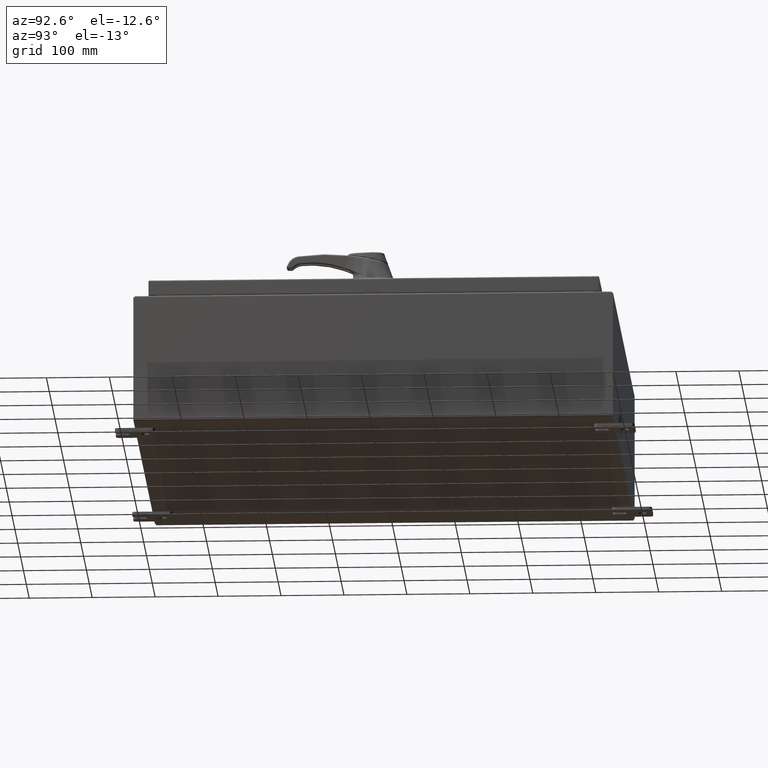
[diagram: clean part render]
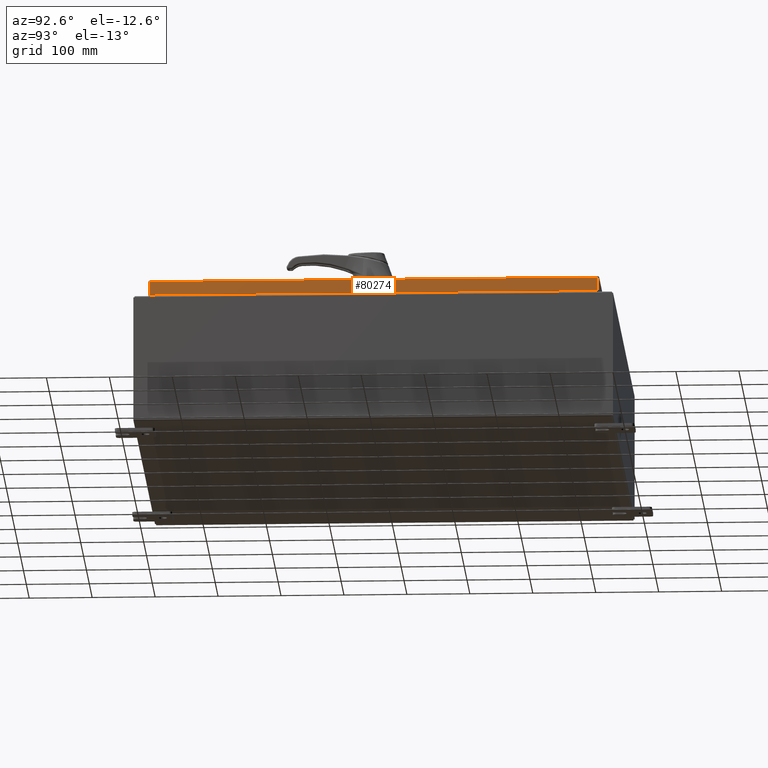
[diagram: same view with one face highlighted and labeled with its STEP entity id]
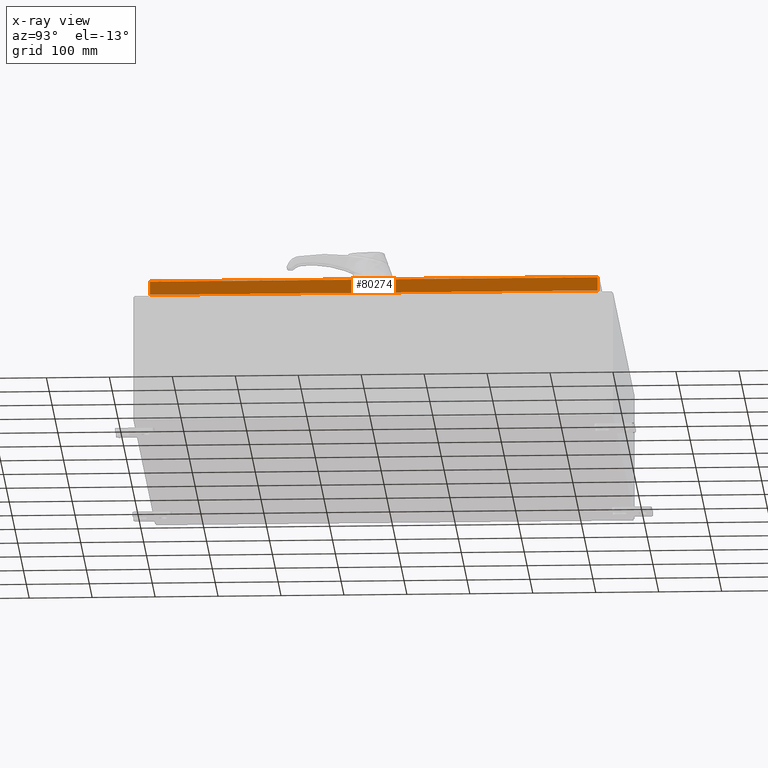
[diagram: x-ray of the same camera — body ghosted, the highlighted face saturated]
A machine part, auxiliary view. The second image highlights one B-rep face of the part: STEP entity #80274.
The next image is the same camera in x-ray: the body ghosted, the highlighted face saturated — about 0% of this face is hidden behind the body in this view.
In plain terms, the highlighted planar face has unit normal (1, 0, 0).
Its self-contained STEP definition (entity closure, byte-faithful):
#1673 = EDGE_LOOP ( 'NONE', ( #116754, #29097, #87503, #41218 ) ) ;
#9002 = EDGE_CURVE ( 'NONE', #63237, #61532, #115085, .T. ) ;
#12471 = AXIS2_PLACEMENT_3D ( 'NONE', #68058, #31735, #95602 ) ;
#16202 = VECTOR ( 'NONE', #103980, 39.37007874015748100 ) ;
#17112 = CARTESIAN_POINT ( 'NONE',  ( 14.07800000000000500, -14.00515786437626500, -0.9376999999999997600 ) ) ;
#21398 = VERTEX_POINT ( 'NONE', #74506 ) ;
#22126 = CARTESIAN_POINT ( 'NONE',  ( 14.07800000000000300, -14.00515786437627200, -0.08770000000000008300 ) ) ;
#23154 = CARTESIAN_POINT ( 'NONE',  ( 14.07800000000000300, -14.00515786437627200, -0.07469999999999980800 ) ) ;
#28100 = VERTEX_POINT ( 'NONE', #17112 ) ;
#29097 = ORIENTED_EDGE ( 'NONE', *, *, #63661, .F. ) ;
#31735 = DIRECTION ( 'NONE',  ( 1.000000000000000000, 0.0000000000000000000, 2.532419924601866100E-015 ) ) ;
#41218 = ORIENTED_EDGE ( 'NONE', *, *, #9002, .T. ) ;
#41522 = DIRECTION ( 'NONE',  ( -2.532419924601866100E-015, -6.982962677686265900E-015, 1.000000000000000000 ) ) ;
#42445 = CARTESIAN_POINT ( 'NONE',  ( 14.07800000000000300, 14.00515786437626400, 1.337097160166004000E-013 ) ) ;
#51599 = DIRECTION ( 'NONE',  ( -2.532419924601866100E-015, -6.982962677686265900E-015, 1.000000000000000000 ) ) ;
#53855 = VECTOR ( 'NONE', #41522, 39.37007874015748100 ) ;
#59540 = LINE ( 'NONE', #23154, #53855 ) ;
#59544 = VECTOR ( 'NONE', #51599, 39.37007874015748100 ) ;
#61407 = FACE_OUTER_BOUND ( 'NONE', #1673, .T. ) ;
#61532 = VERTEX_POINT ( 'NONE', #22126 ) ;
#63237 = VERTEX_POINT ( 'NONE', #90538 ) ;
#63630 = VECTOR ( 'NONE', #76608, 39.37007874015748100 ) ;
#63661 = EDGE_CURVE ( 'NONE', #21398, #28100, #113315, .T. ) ;
#67774 = CARTESIAN_POINT ( 'NONE',  ( 14.07800000000000300, 0.0000000000000000000, -0.08770000000000008300 ) ) ;
#68058 = CARTESIAN_POINT ( 'NONE',  ( 14.07800000000000300, 0.0000000000000000000, 3.591222135455665100E-014 ) ) ;
#71279 = EDGE_CURVE ( 'NONE', #21398, #63237, #83956, .T. ) ;
#74506 = CARTESIAN_POINT ( 'NONE',  ( 14.07800000000000500, 14.00515786437626900, -0.9376999999999997600 ) ) ;
#76608 = DIRECTION ( 'NONE',  ( 0.0000000000000000000, -1.000000000000000000, 0.0000000000000000000 ) ) ;
#80274 = ADVANCED_FACE ( 'NONE', ( #61407 ), #86448, .T. ) ;
#83956 = LINE ( 'NONE', #42445, #59544 ) ;
#86448 = PLANE ( 'NONE',  #12471 ) ;
#87503 = ORIENTED_EDGE ( 'NONE', *, *, #71279, .T. ) ;
#90538 = CARTESIAN_POINT ( 'NONE',  ( 14.07800000000000300, 14.00515786437626200, -0.08770000000000008300 ) ) ;
#95151 = EDGE_CURVE ( 'NONE', #28100, #61532, #59540, .T. ) ;
#95602 = DIRECTION ( 'NONE',  ( 2.532419924601866100E-015, 0.0000000000000000000, -1.000000000000000000 ) ) ;
#103980 = DIRECTION ( 'NONE',  ( 0.0000000000000000000, -1.000000000000000000, 0.0000000000000000000 ) ) ;
#112414 = CARTESIAN_POINT ( 'NONE',  ( 14.07800000000000500, -14.09400000000000300, -0.9376999999999997600 ) ) ;
#113315 = LINE ( 'NONE', #112414, #16202 ) ;
#115085 = LINE ( 'NONE', #67774, #63630 ) ;
#116754 = ORIENTED_EDGE ( 'NONE', *, *, #95151, .F. ) ;